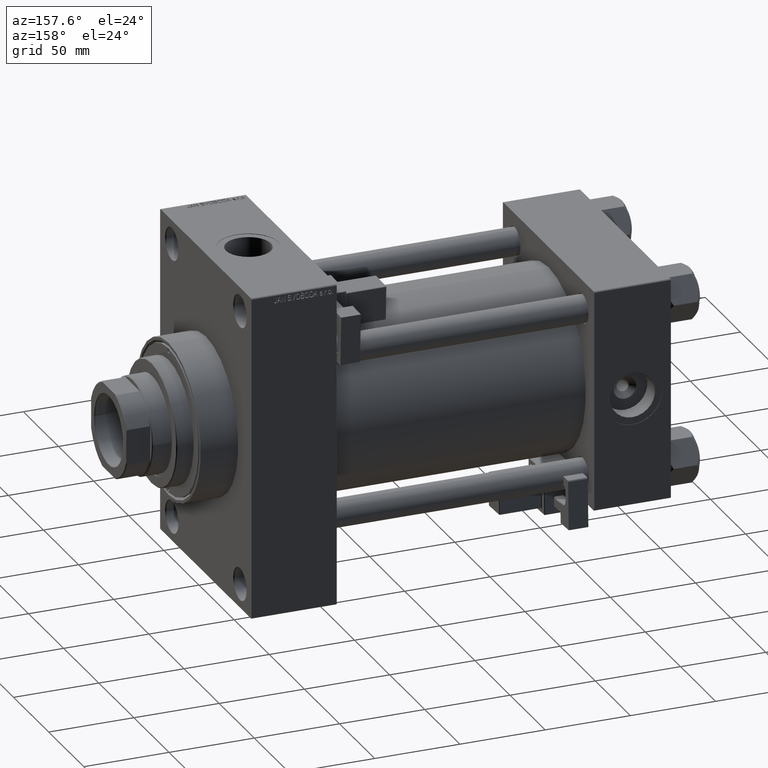
[diagram: clean part render]
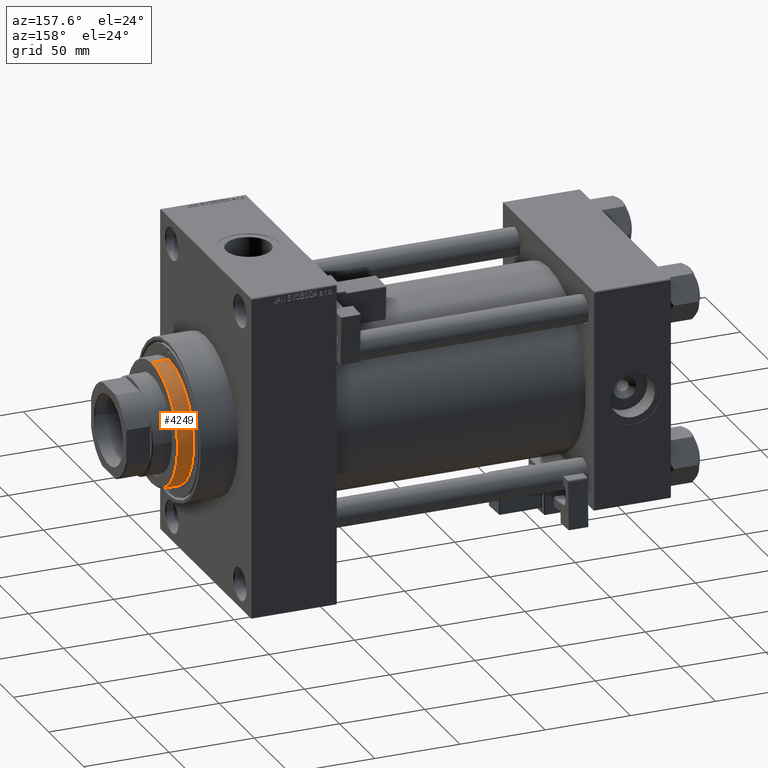
[diagram: same view with one face highlighted and labeled with its STEP entity id]
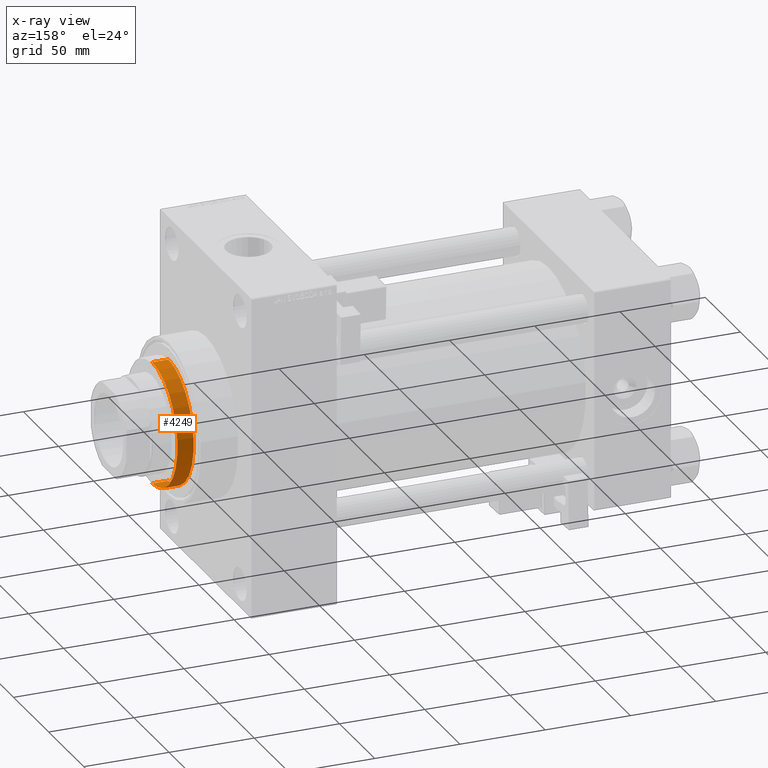
[diagram: x-ray of the same camera — body ghosted, the highlighted face saturated]
A machine part, auxiliary view. The second image highlights one B-rep face of the part: STEP entity #4249.
The next image is the same camera in x-ray: the body ghosted, the highlighted face saturated — about 0% of this face is hidden behind the body in this view.
In plain terms, the highlighted cylindrical surface (partial cylindrical patch) has radius 36 mm, axis along (-1, 0, 0).
Its self-contained STEP definition (entity closure, byte-faithful):
#188 = VERTEX_POINT ( 'NONE', #27450 ) ;
#1215 = CARTESIAN_POINT ( 'NONE',  ( 36.00000000000000000, 4.408728476930470856E-15, 53.26000000000000512 ) ) ;
#2882 = EDGE_CURVE ( 'NONE', #6872, #46403, #11646, .T. ) ;
#2909 = CARTESIAN_POINT ( 'NONE',  ( 0.000000000000000000, 0.000000000000000000, 43.25999999999999801 ) ) ;
#4249 = ADVANCED_FACE ( 'NONE', ( #4844 ), #20295, .T. ) ;
#4287 = CARTESIAN_POINT ( 'NONE',  ( -36.00000000000000000, 0.000000000000000000, 52.76000000000001933 ) ) ;
#4702 = ORIENTED_EDGE ( 'NONE', *, *, #15975, .T. ) ;
#4844 = FACE_OUTER_BOUND ( 'NONE', #28014, .T. ) ;
#6872 = VERTEX_POINT ( 'NONE', #25089 ) ;
#7303 = ORIENTED_EDGE ( 'NONE', *, *, #10327, .T. ) ;
#7445 = ORIENTED_EDGE ( 'NONE', *, *, #2882, .T. ) ;
#8206 = DIRECTION ( 'NONE',  ( -0.000000000000000000, -0.000000000000000000, -1.000000000000000000 ) ) ;
#8706 = DIRECTION ( 'NONE',  ( 0.000000000000000000, 0.000000000000000000, -1.000000000000000000 ) ) ;
#10327 = EDGE_CURVE ( 'NONE', #48427, #6872, #32011, .T. ) ;
#11646 = CIRCLE ( 'NONE', #27043, 36.00000000000000000 ) ;
#15571 = AXIS2_PLACEMENT_3D ( 'NONE', #35080, #8706, #43187 ) ;
#15975 = EDGE_CURVE ( 'NONE', #188, #48427, #42307, .T. ) ;
#17339 = DIRECTION ( 'NONE',  ( 0.000000000000000000, 0.000000000000000000, 1.000000000000000000 ) ) ;
#19787 = CARTESIAN_POINT ( 'NONE',  ( 0.000000000000000000, 0.000000000000000000, 53.26000000000000512 ) ) ;
#20046 = DIRECTION ( 'NONE',  ( -1.000000000000000000, 0.000000000000000000, 0.000000000000000000 ) ) ;
#20295 = CYLINDRICAL_SURFACE ( 'NONE', #38411, 36.00000000000000000 ) ;
#20972 = LINE ( 'NONE', #1215, #34332 ) ;
#21668 = DIRECTION ( 'NONE',  ( 1.000000000000000000, 0.000000000000000000, 0.000000000000000000 ) ) ;
#22602 = EDGE_CURVE ( 'NONE', #188, #46403, #20972, .T. ) ;
#24907 = ORIENTED_EDGE ( 'NONE', *, *, #22602, .F. ) ;
#25089 = CARTESIAN_POINT ( 'NONE',  ( -36.00000000000000000, 0.000000000000000000, 43.25999999999999801 ) ) ;
#26643 = CARTESIAN_POINT ( 'NONE',  ( 36.00000000000000000, 4.408728476930470856E-15, 43.25999999999999801 ) ) ;
#27043 = AXIS2_PLACEMENT_3D ( 'NONE', #2909, #17339, #21668 ) ;
#27450 = CARTESIAN_POINT ( 'NONE',  ( 36.00000000000000000, 4.408728476930470856E-15, 52.76000000000001933 ) ) ;
#28014 = EDGE_LOOP ( 'NONE', ( #24907, #4702, #7303, #7445 ) ) ;
#32011 = LINE ( 'NONE', #43697, #40922 ) ;
#32877 = DIRECTION ( 'NONE',  ( -0.000000000000000000, -0.000000000000000000, -1.000000000000000000 ) ) ;
#34332 = VECTOR ( 'NONE', #32877, 1000.000000000000000 ) ;
#35080 = CARTESIAN_POINT ( 'NONE',  ( 0.000000000000000000, 0.000000000000000000, 52.76000000000001933 ) ) ;
#38411 = AXIS2_PLACEMENT_3D ( 'NONE', #19787, #43132, #20046 ) ;
#40922 = VECTOR ( 'NONE', #8206, 1000.000000000000000 ) ;
#42307 = CIRCLE ( 'NONE', #15571, 36.00000000000000000 ) ;
#43132 = DIRECTION ( 'NONE',  ( -0.000000000000000000, -0.000000000000000000, -1.000000000000000000 ) ) ;
#43187 = DIRECTION ( 'NONE',  ( 1.000000000000000000, 0.000000000000000000, 0.000000000000000000 ) ) ;
#43697 = CARTESIAN_POINT ( 'NONE',  ( -36.00000000000000000, 0.000000000000000000, 53.26000000000000512 ) ) ;
#46403 = VERTEX_POINT ( 'NONE', #26643 ) ;
#48427 = VERTEX_POINT ( 'NONE', #4287 ) ;